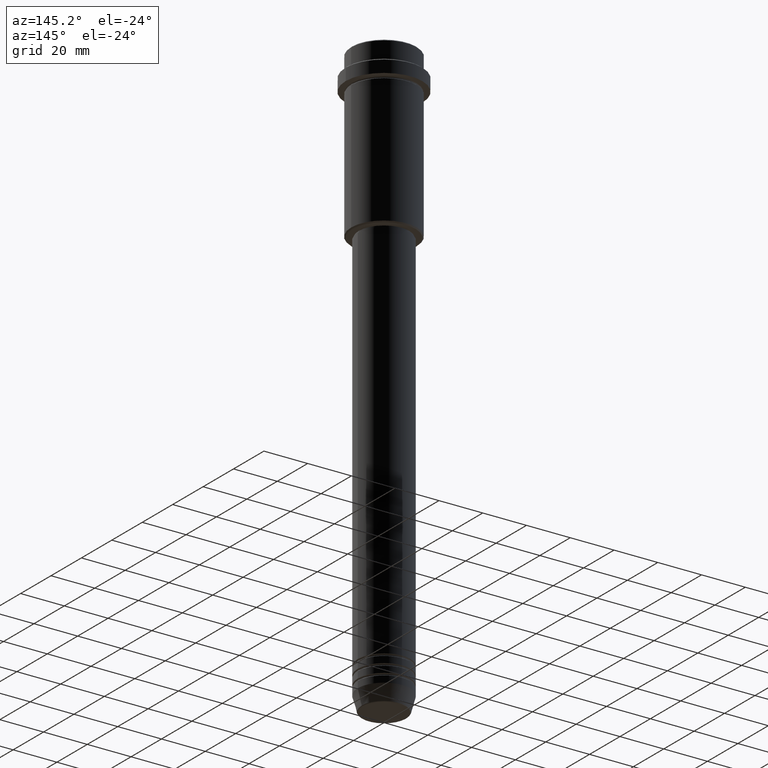
[diagram: clean part render]
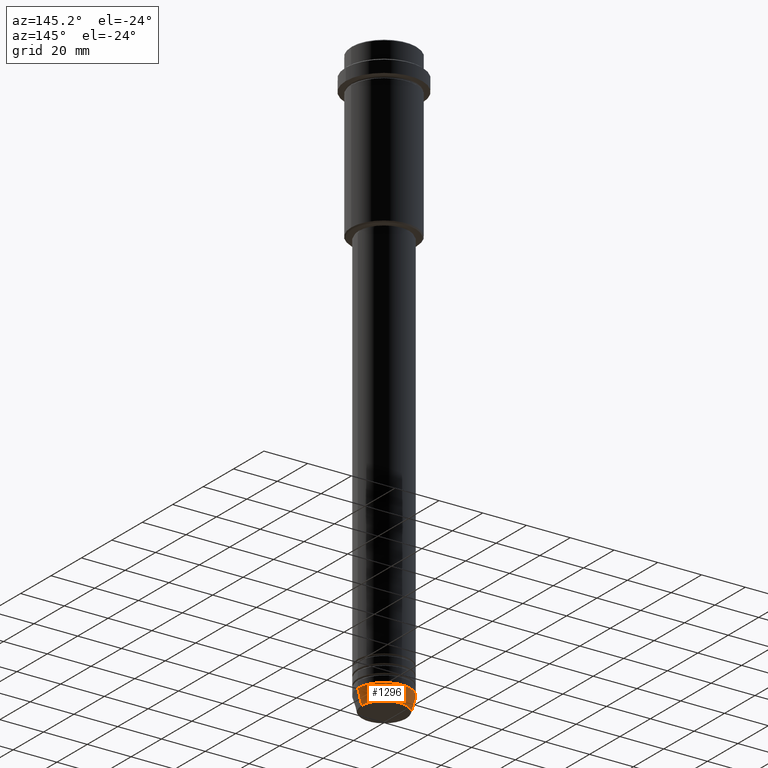
[diagram: same view with one face highlighted and labeled with its STEP entity id]
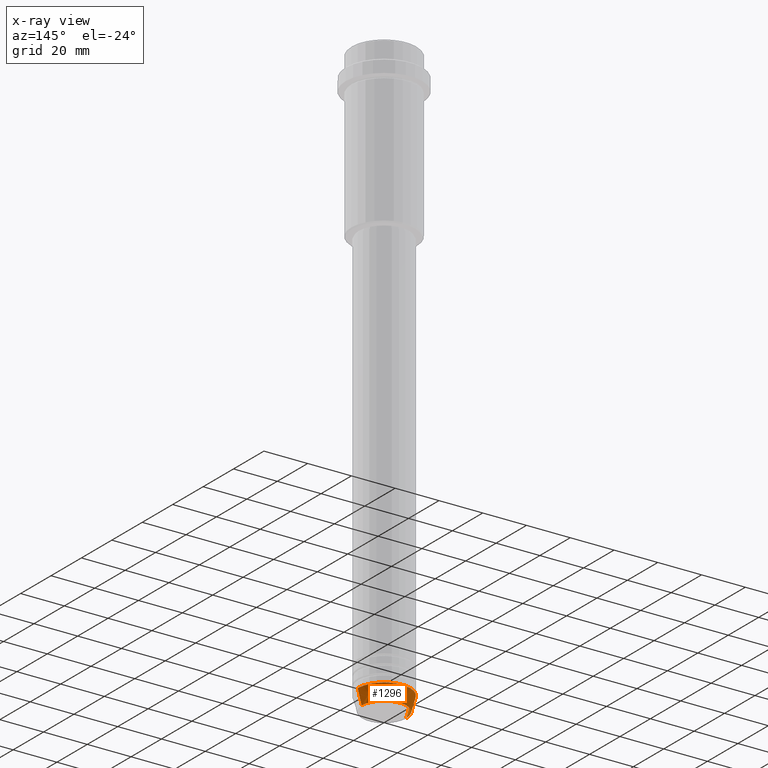
[diagram: x-ray of the same camera — body ghosted, the highlighted face saturated]
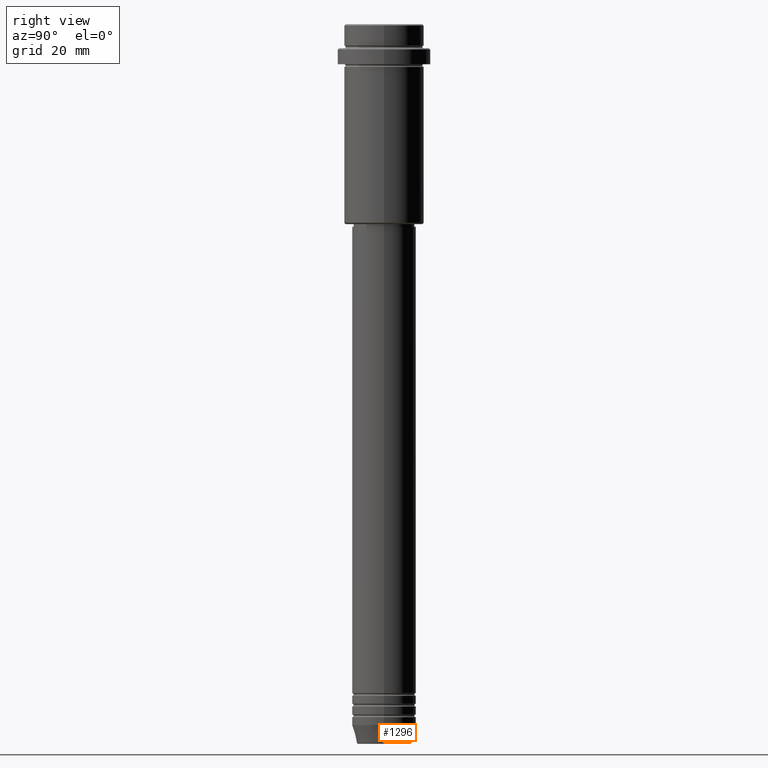
[diagram: same view with one face highlighted and labeled with its STEP entity id]
A machine part, auxiliary view. The second image highlights one B-rep face of the part: STEP entity #1296.
The next image is the same camera in x-ray: the body ghosted, the highlighted face saturated — about 0% of this face is hidden behind the body in this view.
A second angle (right view) of the same face is appended — the face is thin or edge-on in the first view.
In plain terms, the highlighted conical surface has half-angle 15 deg.
Its self-contained STEP definition (entity closure, byte-faithful):
#50 = DIRECTION ( 'NONE',  ( 1.000000000000000000, 0.000000000000000000, 0.000000000000000000 ) ) ;
#61 = AXIS2_PLACEMENT_3D ( 'NONE', #691, #1117, #50 ) ;
#100 = ORIENTED_EDGE ( 'NONE', *, *, #909, .F. ) ;
#122 = CARTESIAN_POINT ( 'NONE',  ( -12.00000000000000000, 1.469576158976823947E-15, -263.0000000000000000 ) ) ;
#161 = AXIS2_PLACEMENT_3D ( 'NONE', #332, #1307, #344 ) ;
#180 = AXIS2_PLACEMENT_3D ( 'NONE', #622, #406, #1047 ) ;
#210 = EDGE_CURVE ( 'NONE', #437, #823, #1149, .T. ) ;
#245 = DIRECTION ( 'NONE',  ( 0.2588190451025213501, 0.000000000000000000, 0.9659258262890680902 ) ) ;
#332 = CARTESIAN_POINT ( 'NONE',  ( 0.000000000000000000, 0.000000000000000000, -263.0000000000000000 ) ) ;
#344 = DIRECTION ( 'NONE',  ( 1.000000000000000000, 0.000000000000000000, 0.000000000000000000 ) ) ;
#359 = CARTESIAN_POINT ( 'NONE',  ( 12.00000000000000000, 0.000000000000000000, -263.0000000000000000 ) ) ;
#366 = CONICAL_SURFACE ( 'NONE', #161, 12.00000000000000000, 0.2617993877991500740 ) ;
#406 = DIRECTION ( 'NONE',  ( -0.000000000000000000, -0.000000000000000000, 1.000000000000000000 ) ) ;
#435 = FACE_OUTER_BOUND ( 'NONE', #1135, .T. ) ;
#437 = VERTEX_POINT ( 'NONE', #986 ) ;
#595 = ORIENTED_EDGE ( 'NONE', *, *, #210, .T. ) ;
#622 = CARTESIAN_POINT ( 'NONE',  ( 0.000000000000000000, 0.000000000000000000, -263.0000000000000000 ) ) ;
#667 = LINE ( 'NONE', #359, #1077 ) ;
#687 = CARTESIAN_POINT ( 'NONE',  ( -12.00000000000000000, 1.469576158976823947E-15, -263.0000000000000000 ) ) ;
#691 = CARTESIAN_POINT ( 'NONE',  ( 0.000000000000000000, 0.000000000000000000, -269.6294095225512706 ) ) ;
#703 = EDGE_CURVE ( 'NONE', #1291, #937, #988, .T. ) ;
#791 = DIRECTION ( 'NONE',  ( -0.2588190451025213501, 3.169619151431772337E-17, 0.9659258262890680902 ) ) ;
#823 = VERTEX_POINT ( 'NONE', #1070 ) ;
#897 = EDGE_CURVE ( 'NONE', #823, #937, #1005, .T. ) ;
#909 = EDGE_CURVE ( 'NONE', #437, #1291, #667, .T. ) ;
#937 = VERTEX_POINT ( 'NONE', #122 ) ;
#978 = CARTESIAN_POINT ( 'NONE',  ( 12.00000000000000000, 0.000000000000000000, -263.0000000000000000 ) ) ;
#986 = CARTESIAN_POINT ( 'NONE',  ( 10.22365507213719127, 0.000000000000000000, -269.6294095225512706 ) ) ;
#988 = CIRCLE ( 'NONE', #180, 12.00000000000000000 ) ;
#1005 = LINE ( 'NONE', #687, #1156 ) ;
#1047 = DIRECTION ( 'NONE',  ( 1.000000000000000000, 0.000000000000000000, 0.000000000000000000 ) ) ;
#1070 = CARTESIAN_POINT ( 'NONE',  ( -10.22365507213719127, 1.360806402472382744E-15, -269.6294095225512706 ) ) ;
#1077 = VECTOR ( 'NONE', #245, 1000.000000000000000 ) ;
#1091 = ORIENTED_EDGE ( 'NONE', *, *, #897, .T. ) ;
#1117 = DIRECTION ( 'NONE',  ( -0.000000000000000000, -0.000000000000000000, 1.000000000000000000 ) ) ;
#1135 = EDGE_LOOP ( 'NONE', ( #595, #1091, #1245, #100 ) ) ;
#1149 = CIRCLE ( 'NONE', #61, 10.22365507213719127 ) ;
#1156 = VECTOR ( 'NONE', #791, 1000.000000000000000 ) ;
#1245 = ORIENTED_EDGE ( 'NONE', *, *, #703, .F. ) ;
#1291 = VERTEX_POINT ( 'NONE', #978 ) ;
#1296 = ADVANCED_FACE ( 'NONE', ( #435 ), #366, .T. ) ;
#1307 = DIRECTION ( 'NONE',  ( -0.000000000000000000, -0.000000000000000000, 1.000000000000000000 ) ) ;